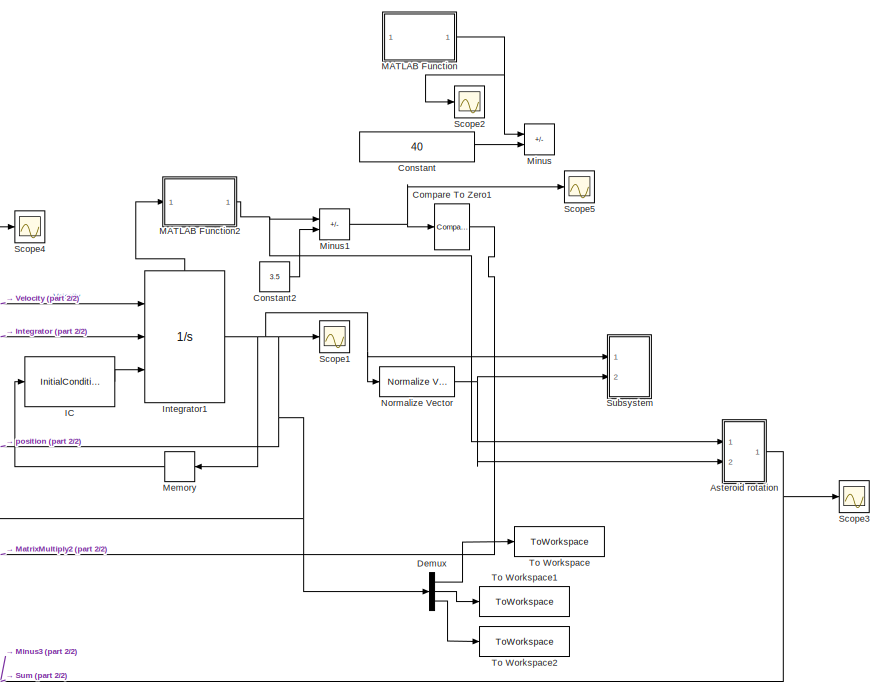
[diagram: root canvas - part 1/2, right side, full height]
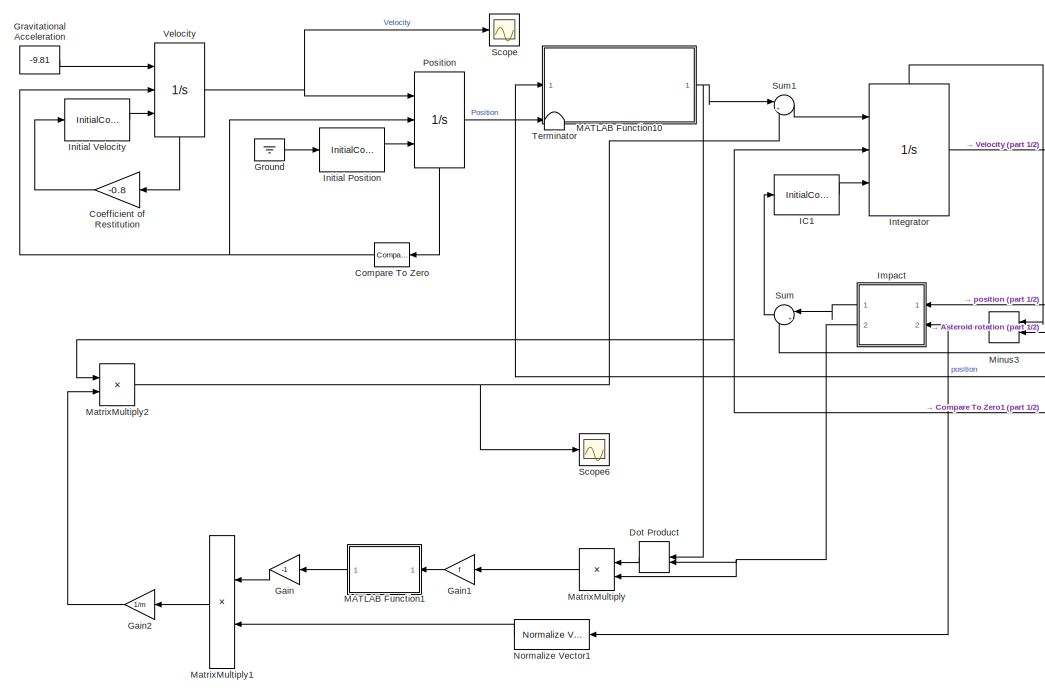
[diagram: root canvas - part 2/2, left side, full height]
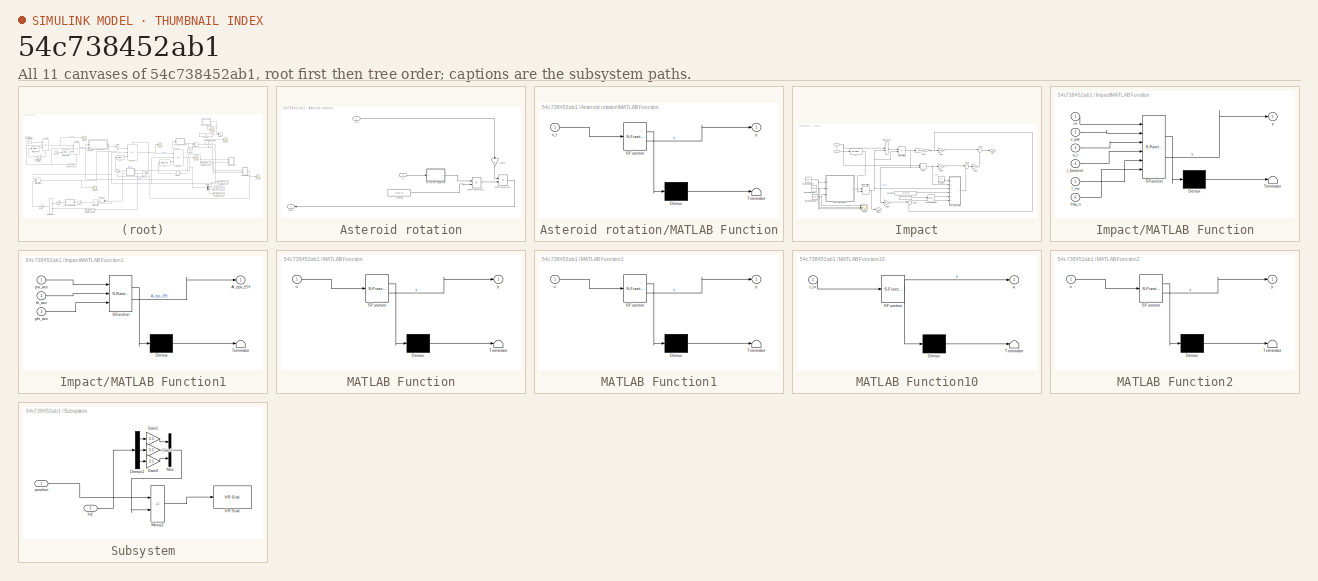
[diagram: thumbnail index - all 11 canvases of the model, root first then tree order]
MODEL slx_54c738452ab1
KIND model
CONFIG AbsTol = auto
CONFIG EnableMultiTasking = off
CONFIG FixedStep = auto
CONFIG MaxStep = auto
CONFIG MinStep = auto
CONFIG RelTol = 1e-5
CONFIG SampleTimeConstraint = Unconstrained
CONFIG SolverName = VariableStepAuto
CONFIG StartTime = 0.0
CONFIG StopTime = time_sim*2
BLOCK [SubSystem] Asteroid rotation
  Ports = [2, 1]
  RequestExecContextInheritance = off
BLOCK [Gain] Asteroid rotation/Gain
  Gain = w
  NameLocation = left
BLOCK [Inport] Asteroid rotation/In1
BLOCK [SubSystem] Asteroid rotation/MATLAB Function
  ErrorFcn = Stateflow.Translate.translate
  PermitHierarchicalResolution = ExplicitOnly
  Ports = [1, 1]
  RequestExecContextInheritance = off
  SFBlockType = MATLAB Function
  TreatAsAtomicUnit = on
BLOCK [Demux] Asteroid rotation/MATLAB Function/ Demux 
  Outputs = 1
  Ports = [1, 1]
BLOCK [S-Function] Asteroid rotation/MATLAB Function/ SFunction 
  EnableBusSupport = on
  FunctionName = sf_sfun
  PortCounts = [1 2]
  Ports = [1, 2]
  SFcnIsStateOwnerBlock = off
  SFunctionDeploymentMode = off
  Tag = Stateflow S-Function 4
BLOCK [Terminator] Asteroid rotation/MATLAB Function/ Terminator 
BLOCK [Inport] Asteroid rotation/MATLAB Function/u_r
BLOCK [Outport] Asteroid rotation/MATLAB Function/y
BLOCK [Product] Asteroid rotation/MatrixMultiply
  Ports = [2, 1]
BLOCK [Product] Asteroid rotation/MatrixMultiply1
  Multiplication = Matrix(*)
  Ports = [2, 1]
BLOCK [Outport] Asteroid rotation/Out1
BLOCK [Inport] Asteroid rotation/a
  Port = 2
BLOCK [Constant] Asteroid rotation/z versor
  Value = [0;0;-1]
BLOCK [Gain] Coefficient of Restitution
  Commented = on
  Gain = -0.8
  OutDataTypeStr = Inherit: Same as input
  ParamDataTypeStr = Inherit: Same as input
  SaturateOnIntegerOverflow = on
BLOCK [Reference] Compare To Zero  REF=simulink/Logic and Bit
Operations/Compare
To Zero
  Commented = on
  Ports = [1, 1]
  SourceBlock = simulink/Logic and Bit\nOperations/Compare\nTo Zero
  SourceProductBaseCode = SL
  SourceType = Compare To Zero
BLOCK [Reference] Compare To Zero1  REF=simulink/Logic and Bit
Operations/Compare
To Zero
  Ports = [1, 1]
  SourceBlock = simulink/Logic and Bit\nOperations/Compare\nTo Zero
  SourceProductBaseCode = SL
  SourceType = Compare To Zero
BLOCK [Constant] Constant
  Commented = on
  Value = 40
BLOCK [Constant] Constant2
  Value = 3.5
BLOCK [Demux] Demux
  Outputs = 3
  Ports = [1, 3]
BLOCK [DotProduct] Dot Product
  NameLocation = top
  OutDataTypeStr = Inherit: Inherit via internal rule
BLOCK [Gain] Gain
  Gain = -1
  NameLocation = top
BLOCK [Gain] Gain1
  Gain = f
  NameLocation = top
BLOCK [Gain] Gain2
  Gain = 1/m
  NameLocation = top
BLOCK [Constant] Gravitational Acceleration
  Commented = on
  NameLocation = top
  Value = -9.81
BLOCK [Ground] Ground
  Commented = on
BLOCK [InitialCondition] IC
  Value = [-13.5;0;0]
BLOCK [InitialCondition] IC1
  Value = [0;0;0]
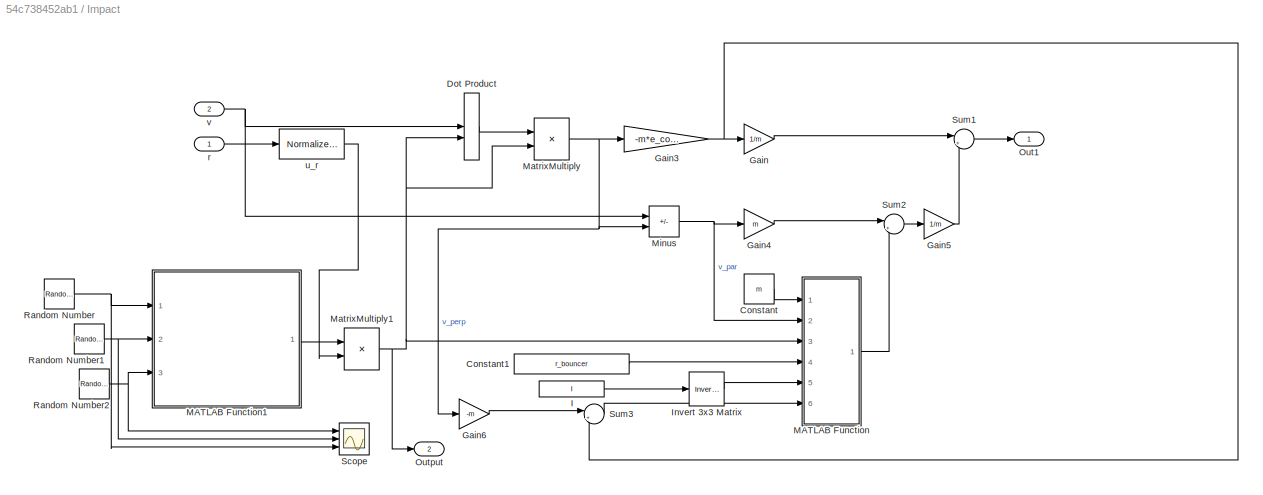
BLOCK [SubSystem] Impact
  NameLocation = top
  Ports = [2, 2]
  RequestExecContextInheritance = off
BLOCK [Constant] Impact/Constant
  Value = m
BLOCK [Constant] Impact/Constant1
  Value = r_bouncer
BLOCK [DotProduct] Impact/Dot Product
  OutDataTypeStr = Inherit: Inherit via internal rule
BLOCK [Gain] Impact/Gain
  Gain = 1/m
BLOCK [Gain] Impact/Gain3
  Gain = -m*e_coeff
BLOCK [Gain] Impact/Gain4
  Gain = m
BLOCK [Gain] Impact/Gain5
  Gain = 1/m
BLOCK [Gain] Impact/Gain6
  Gain = -m
BLOCK [Constant] Impact/I
  Value = I
BLOCK [Reference] Impact/Invert 3x3 Matrix  REF=aerolibutil/Invert 
3x3 Matrix
  Ports = [1, 1]
  SourceBlock = aerolibutil/Invert \n3x3 Matrix
  SourceProductBaseCode = AE
  SourceType = Invert 3x3 Matrix
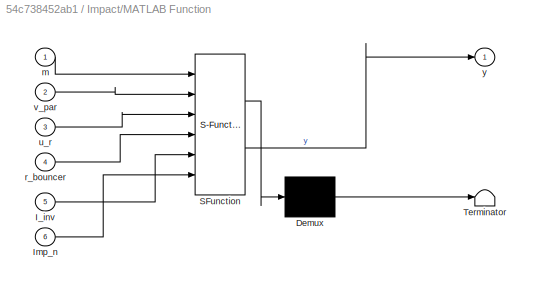
BLOCK [SubSystem] Impact/MATLAB Function
  ErrorFcn = Stateflow.Translate.translate
  PermitHierarchicalResolution = ExplicitOnly
  Ports = [6, 1]
  RequestExecContextInheritance = off
  SFBlockType = MATLAB Function
  TreatAsAtomicUnit = on
BLOCK [Demux] Impact/MATLAB Function/ Demux 
  Outputs = 1
  Ports = [1, 1]
BLOCK [S-Function] Impact/MATLAB Function/ SFunction 
  EnableBusSupport = on
  FunctionName = sf_sfun
  PortCounts = [6 2]
  Ports = [6, 2]
  SFcnIsStateOwnerBlock = off
  SFunctionDeploymentMode = off
  Tag = Stateflow S-Function 1
BLOCK [Terminator] Impact/MATLAB Function/ Terminator 
BLOCK [Inport] Impact/MATLAB Function/I_inv
  Port = 5
BLOCK [Inport] Impact/MATLAB Function/Imp_n
  Port = 6
BLOCK [Inport] Impact/MATLAB Function/m
BLOCK [Inport] Impact/MATLAB Function/r_bouncer
  Port = 4
BLOCK [Inport] Impact/MATLAB Function/u_r
  Port = 3
BLOCK [Inport] Impact/MATLAB Function/v_par
  Port = 2
BLOCK [Outport] Impact/MATLAB Function/y
BLOCK [SubSystem] Impact/MATLAB Function1
  ErrorFcn = Stateflow.Translate.translate
  PermitHierarchicalResolution = ExplicitOnly
  Ports = [3, 1]
  RequestExecContextInheritance = off
  SFBlockType = MATLAB Function
  TreatAsAtomicUnit = on
BLOCK [Demux] Impact/MATLAB Function1/ Demux 
  Outputs = 1
  Ports = [1, 1]
BLOCK [S-Function] Impact/MATLAB Function1/ SFunction 
  EnableBusSupport = on
  FunctionName = sf_sfun
  PortCounts = [3 2]
  Ports = [3, 2]
  SFcnIsStateOwnerBlock = off
  SFunctionDeploymentMode = off
  Tag = Stateflow S-Function 5
BLOCK [Terminator] Impact/MATLAB Function1/ Terminator 
BLOCK [Outport] Impact/MATLAB Function1/A_eps_EH
BLOCK [Inport] Impact/MATLAB Function1/phi_acc
  Port = 3
BLOCK [Inport] Impact/MATLAB Function1/psi_acc
BLOCK [Inport] Impact/MATLAB Function1/th_acc
  Port = 2
BLOCK [Product] Impact/MatrixMultiply
  Ports = [2, 1]
BLOCK [Product] Impact/MatrixMultiply1
  Multiplication = Matrix(*)
  Ports = [2, 1]
BLOCK [Sum] Impact/Minus
  IconShape = rectangular
  Inputs = +-
  Ports = [2, 1]
BLOCK [Outport] Impact/Out1
BLOCK [Outport] Impact/Output
  Port = 2
BLOCK [RandomNumber] Impact/Random Number
  SampleTime = 0.1
  Variance = 0.0034
BLOCK [RandomNumber] Impact/Random Number1
  SampleTime = 0.1
  Seed = 1
  Variance = 0.0034
BLOCK [RandomNumber] Impact/Random Number2
  SampleTime = 0.1
  Seed = 2
  Variance = 0.0034
BLOCK [Scope] Impact/Scope
  Floating = off
  NumInputPorts = 3
  Ports = [3]
  ScopeSpecificationString = Simulink.scopes.TimeScopeBlockCfg('CurrentConfiguration', extmgr.ConfigurationSet(extmgr.Configuration('Core','General UI',true),extmgr.Configuration('Core','Source UI',true),extmgr.Configuration('Sources','WiredSimulink',true,'DataLoggingVariableName','ScopeData2'),extmgr.Configuration('Visuals','Time Domain',true,'SerializedDisplays',{struct('MinYLimReal','-0.36279','MaxYLimReal','0.35408','YLab...<+1437ch>
BLOCK [Sum] Impact/Sum1
  Inputs = |++
  Ports = [2, 1]
BLOCK [Sum] Impact/Sum2
  Inputs = |++
  Ports = [2, 1]
BLOCK [Sum] Impact/Sum3
  Inputs = |++
  Ports = [2, 1]
BLOCK [Inport] Impact/r
BLOCK [Reference] Impact/u_r  REF=vrlib/Utilities/Normalize Vector
  Ports = [1, 1]
  SourceBlock = vrlib/Utilities/Normalize Vector
  SourceProductBaseCode = SL
  SourceType = Normalize Vector
BLOCK [Inport] Impact/v
  Port = 2
BLOCK [InitialCondition] Initial Position
  Commented = on
  Value = 10
BLOCK [InitialCondition] Initial Velocity
  Commented = on
  Value = 15
BLOCK [Integrator] Integrator
  ExternalReset = rising
  InitialConditionSource = external
  Ports = [3, 1, 0, 0, 1]
  ShowStatePort = on
BLOCK [Integrator] Integrator1
  ExternalReset = rising
  InitialConditionSource = external
  Ports = [3, 1, 0, 0, 1]
  ShowStatePort = on
BLOCK [SubSystem] MATLAB Function
  Commented = on
  ErrorFcn = Stateflow.Translate.translate
  PermitHierarchicalResolution = ExplicitOnly
  Ports = [1, 1]
  RequestExecContextInheritance = off
  SFBlockType = MATLAB Function
  TreatAsAtomicUnit = on
BLOCK [Demux] MATLAB Function/ Demux 
  Outputs = 1
  Ports = [1, 1]
BLOCK [S-Function] MATLAB Function/ SFunction 
  EnableBusSupport = on
  FunctionName = sf_sfun
  PortCounts = [1 2]
  Ports = [1, 2]
  SFcnIsStateOwnerBlock = off
  SFunctionDeploymentMode = off
  Tag = Stateflow S-Function 2
BLOCK [Terminator] MATLAB Function/ Terminator 
BLOCK [Inport] MATLAB Function/u
BLOCK [Outport] MATLAB Function/y
BLOCK [SubSystem] MATLAB Function1
  ErrorFcn = Stateflow.Translate.translate
  NameLocation = top
  PermitHierarchicalResolution = ExplicitOnly
  Ports = [1, 1]
  RequestExecContextInheritance = off
  SFBlockType = MATLAB Function
  TreatAsAtomicUnit = on
BLOCK [Demux] MATLAB Function1/ Demux 
  Outputs = 1
  Ports = [1, 1]
BLOCK [S-Function] MATLAB Function1/ SFunction 
  EnableBusSupport = on
  FunctionName = sf_sfun
  PortCounts = [1 2]
  Ports = [1, 2]
  SFcnIsStateOwnerBlock = off
  SFunctionDeploymentMode = off
  Tag = Stateflow S-Function 6
BLOCK [Terminator] MATLAB Function1/ Terminator 
BLOCK [Inport] MATLAB Function1/u
BLOCK [Outport] MATLAB Function1/y
BLOCK [SubSystem] MATLAB Function10
  ErrorFcn = Stateflow.Translate.translate
  PermitHierarchicalResolution = ExplicitOnly
  Ports = [1, 1]
  RequestExecContextInheritance = off
  SFBlockType = MATLAB Function
  TreatAsAtomicUnit = on
BLOCK [Demux] MATLAB Function10/ Demux 
  Outputs = 1
  Ports = [1, 1]
BLOCK [S-Function] MATLAB Function10/ SFunction 
  EnableBusSupport = on
  FunctionName = sf_sfun
  PortCounts = [1 2]
  Ports = [1, 2]
  SFcnIsStateOwnerBlock = off
  SFunctionDeploymentMode = off
  Tag = Stateflow S-Function 21
BLOCK [Terminator] MATLAB Function10/ Terminator 
BLOCK [Outport] MATLAB Function10/a
BLOCK [Inport] MATLAB Function10/r_in
BLOCK [SubSystem] MATLAB Function2
  ErrorFcn = Stateflow.Translate.translate
  PermitHierarchicalResolution = ExplicitOnly
  Ports = [1, 1]
  RequestExecContextInheritance = off
  SFBlockType = MATLAB Function
  TreatAsAtomicUnit = on
BLOCK [Demux] MATLAB Function2/ Demux 
  Outputs = 1
  Ports = [1, 1]
BLOCK [S-Function] MATLAB Function2/ SFunction 
  EnableBusSupport = on
  FunctionName = sf_sfun
  PortCounts = [1 2]
  Ports = [1, 2]
  SFcnIsStateOwnerBlock = off
  SFunctionDeploymentMode = off
  Tag = Stateflow S-Function 3
BLOCK [Terminator] MATLAB Function2/ Terminator 
BLOCK [Inport] MATLAB Function2/u
BLOCK [Outport] MATLAB Function2/y
BLOCK [Product] MatrixMultiply
  NameLocation = top
  Ports = [2, 1]
BLOCK [Product] MatrixMultiply1
  NameLocation = top
  Ports = [2, 1]
BLOCK [Product] MatrixMultiply2
  Ports = [2, 1]
BLOCK [Memory] Memory
  NameLocation = top
BLOCK [Sum] Minus
  Commented = on
  IconShape = rectangular
  Inputs = +-
  Ports = [2, 1]
BLOCK [Sum] Minus1
  IconShape = rectangular
  Inputs = +-
  Ports = [2, 1]
BLOCK [Sum] Minus3
  IconShape = rectangular
  Inputs = +-
  NameLocation = top
  Ports = [2, 1]
BLOCK [Reference] Normalize Vector  REF=vrlib/Utilities/Normalize Vector
  Ports = [1, 1]
  SourceBlock = vrlib/Utilities/Normalize Vector
  SourceProductBaseCode = SL
  SourceType = Normalize Vector
BLOCK [Reference] Normalize Vector1  REF=vrlib/Utilities/Normalize Vector
  NameLocation = top
  Ports = [1, 1]
  SourceBlock = vrlib/Utilities/Normalize Vector
  SourceProductBaseCode = SL
  SourceType = Normalize Vector
BLOCK [Integrator] Position
  Commented = on
  ExternalReset = rising
  InitialConditionSource = external
  LimitOutput = on
  LowerSaturationLimit = 0
  NameLocation = top
  Ports = [3, 1, 0, 0, 1]
  ShowStatePort = on
BLOCK [Scope] Scope
  Commented = on
  Floating = off
  NumInputPorts = 1
  Ports = [1]
  ScopeSpecificationString = Simulink.scopes.TimeScopeBlockCfg('CurrentConfiguration', extmgr.ConfigurationSet(extmgr.Configuration('Core','General UI',true),extmgr.Configuration('Core','Source UI',true),extmgr.Configuration('Sources','WiredSimulink',true),extmgr.Configuration('Visuals','Time Domain',true,'SerializedDisplays',{struct('MinYLimReal','-25.14087','MaxYLimReal','21.03624','YLabelReal','','MinYLimMag','0.00000','Ma...<+1334ch>
BLOCK [Scope] Scope1
  Floating = off
  NumInputPorts = 1
  Ports = [1]
  ScopeSpecificationString = Simulink.scopes.TimeScopeBlockCfg('CurrentConfiguration', extmgr.ConfigurationSet(extmgr.Configuration('Core','General UI',true),extmgr.Configuration('Core','Source UI',true),extmgr.Configuration('Sources','WiredSimulink',true,'DataLoggingVariableName','ScopeData1'),extmgr.Configuration('Visuals','Time Domain',true,'SerializedDisplays',{struct('MinYLimReal','-52.77093','MaxYLimReal','9.70326','YLa...<+1567ch>
BLOCK [Scope] Scope2
  Commented = on
  Floating = off
  NumInputPorts = 1
  Ports = [1]
  ScopeSpecificationString = Simulink.scopes.TimeScopeBlockCfg('CurrentConfiguration', extmgr.ConfigurationSet(extmgr.Configuration('Core','General UI',true),extmgr.Configuration('Core','Source UI',true),extmgr.Configuration('Sources','WiredSimulink',true,'DataLoggingVariableName','ScopeData2'),extmgr.Configuration('Visuals','Time Domain',true,'SerializedDisplays',{struct('MinYLimReal','-5.88687','MaxYLimReal','52.98187','YLa...<+1378ch>
BLOCK [Scope] Scope3
  Floating = off
  NumInputPorts = 1
  Ports = [1]
  ScopeSpecificationString = Simulink.scopes.TimeScopeBlockCfg('CurrentConfiguration', extmgr.ConfigurationSet(extmgr.Configuration('Core','General UI',true),extmgr.Configuration('Core','Source UI',true),extmgr.Configuration('Sources','WiredSimulink',true,'DataLoggingVariableName','ScopeData1'),extmgr.Configuration('Visuals','Time Domain',true,'SerializedDisplays',{struct('MinYLimReal','-0.00292','MaxYLimReal','0.00087','YLab...<+1568ch>
BLOCK [Scope] Scope4
  Floating = off
  NumInputPorts = 1
  Ports = [1]
  ScopeSpecificationString = Simulink.scopes.TimeScopeBlockCfg('CurrentConfiguration', extmgr.ConfigurationSet(extmgr.Configuration('Core','General UI',true),extmgr.Configuration('Core','Source UI',true),extmgr.Configuration('Sources','WiredSimulink',true,'DataLoggingVariableName','ScopeData4'),extmgr.Configuration('Visuals','Time Domain',true,'SerializedDisplays',{struct('MinYLimReal','-0.19251','MaxYLimReal','0.13251','YLab...<+1543ch>
BLOCK [Scope] Scope5
  Floating = off
  NumInputPorts = 1
  Ports = [1]
  ScopeSpecificationString = Simulink.scopes.TimeScopeBlockCfg('CurrentConfiguration', extmgr.ConfigurationSet(extmgr.Configuration('Core','General UI',true),extmgr.Configuration('Core','Source UI',true),extmgr.Configuration('Sources','WiredSimulink',true,'DataLoggingVariableName','ScopeData5'),extmgr.Configuration('Visuals','Time Domain',true,'SerializedDisplays',{struct('MinYLimReal','-1.25','MaxYLimReal','11.25','YLabelRea...<+1456ch>
BLOCK [Scope] Scope6
  Floating = off
  NumInputPorts = 1
  Ports = [1]
  ScopeSpecificationString = Simulink.scopes.TimeScopeBlockCfg('CurrentConfiguration', extmgr.ConfigurationSet(extmgr.Configuration('Core','General UI',true),extmgr.Configuration('Core','Source UI',true),extmgr.Configuration('Sources','WiredSimulink',true,'DataLoggingVariableName','ScopeData3'),extmgr.Configuration('Visuals','Time Domain',true,'SerializedDisplays',{struct('MinYLimReal','-0.000000043','MaxYLimReal','0.00000000...<+1484ch>
BLOCK [SubSystem] Subsystem
  Ports = [2]
  RequestExecContextInheritance = off
BLOCK [Demux] Subsystem/Demux1
  Outputs = 3
  Ports = [1, 3]
BLOCK [Gain] Subsystem/Gain1
  Gain = 3.5
BLOCK [Gain] Subsystem/Gain2
  Gain = 3.5
BLOCK [Gain] Subsystem/Gain3
  Gain = 3.5
BLOCK [Inport] Subsystem/In2
  Port = 2
BLOCK [Sum] Subsystem/Minus2
  IconShape = rectangular
  Inputs = +-
  Ports = [2, 1]
BLOCK [Mux] Subsystem/Mux
  DisplayOption = bar
  Inputs = 3
  Ports = [3, 1]
BLOCK [Reference] Subsystem/VR Sink  REF=vrlib/VR Sink
  Commented = on
  InstantiateOnLoad = on
  Ports = [1]
  SourceBlock = vrlib/VR Sink
  SourceProductBaseCode = SL
  SourceType = Virtual Reality Sink
BLOCK [Inport] Subsystem/position
BLOCK [Sum] Sum
  Inputs = |++
  NameLocation = top
  Ports = [2, 1]
BLOCK [Sum] Sum1
  Inputs = |++
  Ports = [2, 1]
BLOCK [Terminator] Terminator
  Commented = on
  NameLocation = top
BLOCK [ToWorkspace] To Workspace
  FixptAsFi = on
  MaxDataPoints = inf
  Ports = [1]
  SampleTime = -1
  SaveFormat = Timeseries
  VariableName = x_ast
BLOCK [ToWorkspace] To Workspace1
  FixptAsFi = on
  MaxDataPoints = inf
  Ports = [1]
  SampleTime = -1
  SaveFormat = Timeseries
  VariableName = y_ast
BLOCK [ToWorkspace] To Workspace2
  FixptAsFi = on
  MaxDataPoints = inf
  Ports = [1]
  SampleTime = -1
  SaveFormat = Timeseries
  VariableName = z_ast
BLOCK [Integrator] Velocity
  Commented = on
  ExternalReset = rising
  InitialConditionSource = external
  NameLocation = top
  Ports = [3, 1, 0, 0, 1]
  ShowStatePort = on
LINE Asteroid rotation/Gain:1 -> Asteroid rotation/MatrixMultiply:1
LINE Asteroid rotation/In1:1 -> Asteroid rotation/Gain:1
LINE Asteroid rotation/MATLAB Function:1 -> Asteroid rotation/MatrixMultiply1:1
LINE Asteroid rotation/MatrixMultiply1:1 -> Asteroid rotation/MatrixMultiply:2
LINE Asteroid rotation/MatrixMultiply:1 -> Asteroid rotation/Out1:1
LINE Asteroid rotation/a:1 -> Asteroid rotation/MATLAB Function:1
LINE Asteroid rotation/z versor:1 -> Asteroid rotation/MatrixMultiply1:2
NET Asteroid rotation:1 -> Minus3:2, Scope3:1, Sum:2
LINE Coefficient of Restitution:1 -> Initial Velocity:1
NET Compare To Zero1:1 -> Integrator1:2, Integrator:2, MatrixMultiply2:1
NET Compare To Zero:1 -> Position:2, Velocity:2
LINE Constant2:1 -> Minus1:2
LINE Constant:1 -> Minus:2
LINE Demux:1 -> To Workspace:1
LINE Demux:2 -> To Workspace1:1
LINE Demux:3 -> To Workspace2:1
LINE Dot Product:1 -> MatrixMultiply:1
LINE Gain1:1 -> MATLAB Function1:1
LINE Gain2:1 -> MatrixMultiply2:2
LINE Gain:1 -> MatrixMultiply1:1
LINE Gravitational Acceleration:1 -> Velocity:1
LINE Ground:1 -> Initial Position:1
LINE IC1:1 -> Integrator:3
LINE IC:1 -> Integrator1:3
LINE Impact/Constant1:1 -> Impact/MATLAB Function:4
LINE Impact/Constant:1 -> Impact/MATLAB Function:1
LINE Impact/Dot Product:1 -> Impact/MatrixMultiply:1
NET Impact/Gain3:1 -> Impact/Gain:1, Impact/Sum3:2
LINE Impact/Gain4:1 -> Impact/Sum2:1
LINE Impact/Gain5:1 -> Impact/Sum1:2
LINE Impact/Gain6:1 -> Impact/Sum3:1
LINE Impact/Gain:1 -> Impact/Sum1:1
LINE Impact/I:1 -> Impact/Invert 3x3 Matrix:1
LINE Impact/Invert 3x3 Matrix:1 -> Impact/MATLAB Function:5
LINE Impact/MATLAB Function1:1 -> Impact/MatrixMultiply1:1
LINE Impact/MATLAB Function:1 -> Impact/Sum2:2
NET Impact/MatrixMultiply1:1 -> Impact/Dot Product:2, Impact/MATLAB Function:3, Impact/MatrixMultiply:2, Impact/Output:1
NET Impact/MatrixMultiply:1 -> Impact/Gain3:1, Impact/Gain6:1, Impact/Minus:2
NET Impact/Minus:1 -> Impact/Gain4:1, Impact/MATLAB Function:2
NET Impact/Random Number1:1 -> Impact/MATLAB Function1:2, Impact/Scope:2
NET Impact/Random Number2:1 -> Impact/MATLAB Function1:3, Impact/Scope:1
NET Impact/Random Number:1 -> Impact/MATLAB Function1:1, Impact/Scope:3
LINE Impact/Sum1:1 -> Impact/Out1:1
LINE Impact/Sum2:1 -> Impact/Gain5:1
LINE Impact/Sum3:1 -> Impact/MATLAB Function:6
LINE Impact/r:1 -> Impact/u_r:1
LINE Impact/u_r:1 -> Impact/MatrixMultiply1:2
NET Impact/v:1 -> Impact/Dot Product:1, Impact/Minus:1
LINE Impact:1 -> Sum:1
NET Impact:2 -> Dot Product:2, MatrixMultiply:2
LINE Initial Position:1 -> Position:3
LINE Initial Velocity:1 -> Velocity:3
NET Integrator1:1 -> Demux:1, Impact:1, MATLAB Function10:1, Memory:1, Normalize Vector:1, Scope1:1, Subsystem:1
LINE Integrator1:state -> MATLAB Function2:1
NET Integrator:1 -> Integrator1:1, Scope4:1
LINE Integrator:state -> Minus3:1
NET MATLAB Function10:1 -> Dot Product:1, Sum1:1
LINE MATLAB Function1:1 -> Gain:1
NET MATLAB Function2:1 -> Asteroid rotation:1, Minus1:1
NET MATLAB Function:1 -> Minus:1, Scope2:1
LINE MatrixMultiply1:1 -> Gain2:1
NET MatrixMultiply2:1 -> Scope6:1, Sum1:2
LINE MatrixMultiply:1 -> Gain1:1
LINE Memory:1 -> IC:1
NET Minus1:1 -> Compare To Zero1:1, Scope5:1
NET Minus3:1 -> Impact:2, Normalize Vector1:1
LINE Normalize Vector1:1 -> MatrixMultiply1:2
NET Normalize Vector:1 -> Asteroid rotation:2, Subsystem:2
LINE Position:1 -> Terminator:1
LINE Position:state -> Compare To Zero:1
LINE Subsystem/Demux1:1 -> Subsystem/Gain1:1
LINE Subsystem/Demux1:2 -> Subsystem/Gain2:1
LINE Subsystem/Demux1:3 -> Subsystem/Gain3:1
LINE Subsystem/Gain1:1 -> Subsystem/Mux:1
LINE Subsystem/Gain2:1 -> Subsystem/Mux:2
LINE Subsystem/Gain3:1 -> Subsystem/Mux:3
LINE Subsystem/In2:1 -> Subsystem/Demux1:1
LINE Subsystem/Minus2:1 -> Subsystem/VR Sink:1
LINE Subsystem/Mux:1 -> Subsystem/Minus2:2
LINE Subsystem/position:1 -> Subsystem/Minus2:1
LINE Sum1:1 -> Integrator:1
LINE Sum:1 -> IC1:1
NET Velocity:1 -> Position:1, Scope:1
LINE Velocity:state -> Coefficient of Restitution:1
note: NET lines group one-source signal fan-out (src -> all destinations, sorted); 1:1 wires keep LINE
CHART Impact/MATLAB Function states=1 transitions=1
  STATE_LABEL 'eML_blk_kernel()'
  STATE_LABEL 'SCRIPT:\nfunction y = fcn(m,v_par,u_r,r_bouncer,I_inv,Imp_n)\nif norm(v_par)==0\n    y=[0;0;0];\nelse\n% y=-min([norm(m*v_par)/norm(cross(u_r,eye(3)+m*r_bouncer^2*I_inv)*(cross(u_r,v_par/norm(v_par)))),Imp_n])*v_par/norm(v_par);\ny=-min([norm(m*v_par)/norm([0 -u_r(3) u_r(2); u_r(3) 0 -u_r(1); -u_r(2) u_r(1) 0]*(eye(3)+m*r_bouncer^2*I_inv)*(cross(u_r,v_par/norm(v_par)))),norm(Imp_n)])*v_par/norm(v_par);\n...<+5ch>'
CHART MATLAB Function states=1 transitions=1
  STATE_LABEL 'eML_blk_kernel()'
  STATE_LABEL 'SCRIPT:\nfunction y = fcn(u)\n\ny = norm(u(:));\n'
CHART MATLAB Function2 states=1 transitions=1
  STATE_LABEL 'eML_blk_kernel()'
  STATE_LABEL 'SCRIPT:\nfunction y = fcn(u)\n\ny = norm(u(:));\n'
CHART Asteroid rotation/MATLAB Function states=1 transitions=1
  STATE_LABEL 'eML_blk_kernel()'
  STATE_LABEL 'SCRIPT:\nfunction y = fcn(u_r)\ny=[0 -u_r(3) u_r(2); u_r(3) 0 -u_r(1); -u_r(2) u_r(1) 0];\n\n'
CHART Impact/MATLAB Function1 states=1 transitions=1
  STATE_LABEL 'eML_blk_kernel()'
  STATE_LABEL 'SCRIPT:\nfunction A_eps_EH = fcn(psi_acc,th_acc,phi_acc)\nA_eps_EH = [cos(psi_acc)*cos(th_acc)  (cos(psi_acc)*sin(th_acc)*sin(phi_acc)+sin(psi_acc)*cos(phi_acc)) (-cos(psi_acc)*sin(th_acc)*cos(phi_acc)+sin(psi_acc)*sin(phi_acc));\n                -sin(psi_acc)*cos(th_acc) (-sin(psi_acc)*sin(th_acc)*sin(phi_acc)+cos(psi_acc)*cos(phi_acc))  (sin(psi_acc)*sin(th_acc)*cos(phi_acc)+cos(psi_acc)*sin(phi_ac...<+143ch>'
CHART MATLAB Function1 states=1 transitions=1
  STATE_LABEL 'eML_blk_kernel()'
  STATE_LABEL 'SCRIPT:\nfunction y = fcn(u)\n\ny = norm(u(:));\n'
CHART MATLAB Function10 states=1 transitions=1
  STATE_LABEL 'eML_blk_kernel()'
  STATE_LABEL "SCRIPT:\nfunction a  = asteroid_gravity_point_model(r_in)\nG=6.674e-11; %m3/(kg*s2)\nmass= 1.7952e+05; %LOW 2009TD17 %2.090805433926013e+08;%kg%Bennu\nmu=mass*G;\nr_=[r_in(1),r_in(2),r_in(3)];\nr=norm(r_);\na=((-mu*r_/(r^3)))'; %m/s^2\n\n"
CHART  states=0 transitions=0
CHART  states=0 transitions=0
CHART  states=0 transitions=0
CHART  states=0 transitions=0
CHART  states=0 transitions=0
CHART  states=0 transitions=0
CHART  states=0 transitions=0
